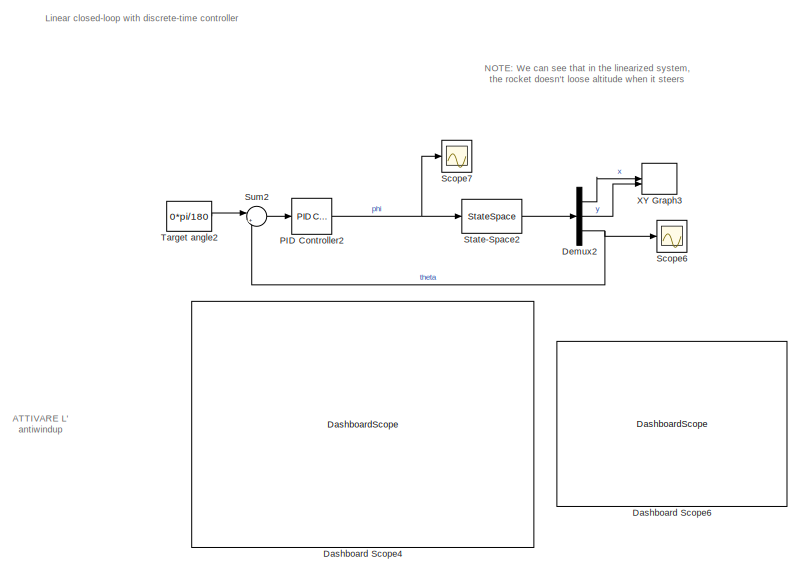
[diagram: root canvas - part 1/7, top center region]
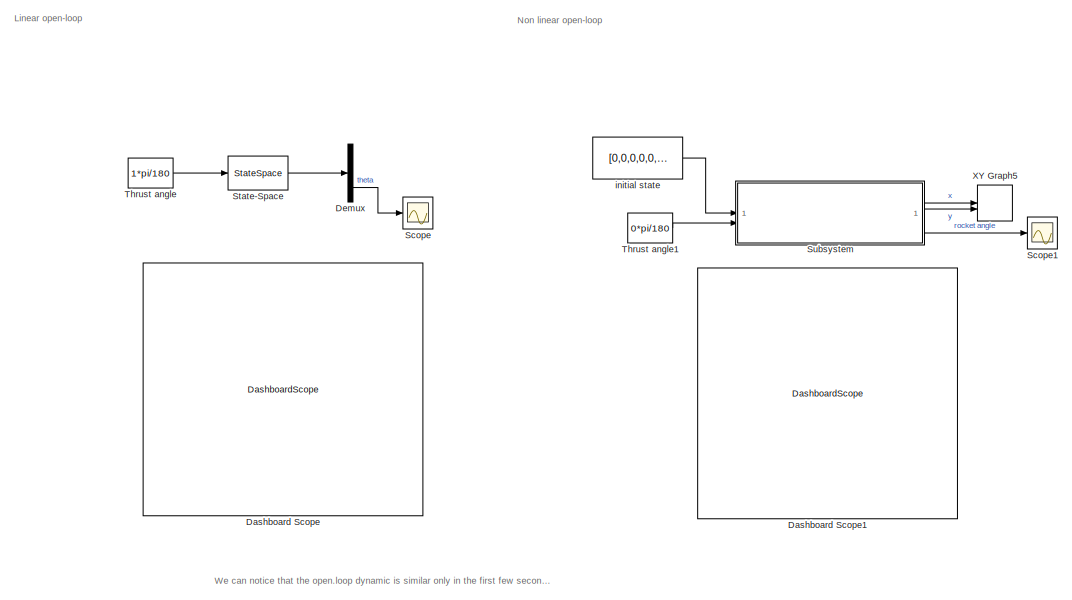
[diagram: root canvas - part 2/7, top left region]
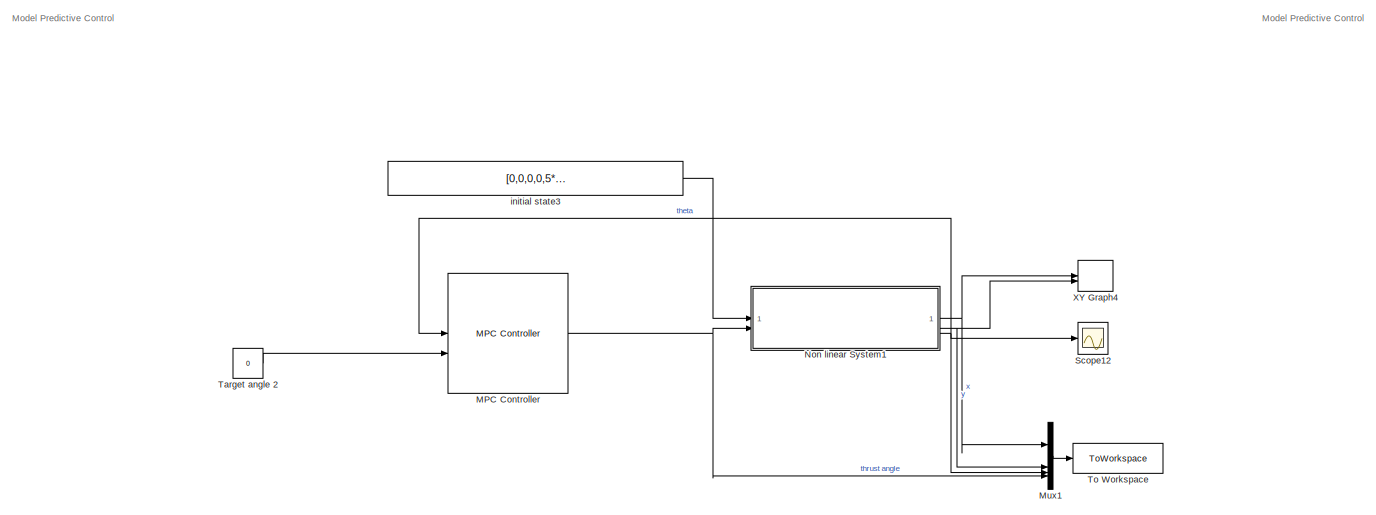
[diagram: root canvas - part 3/7, top right region]
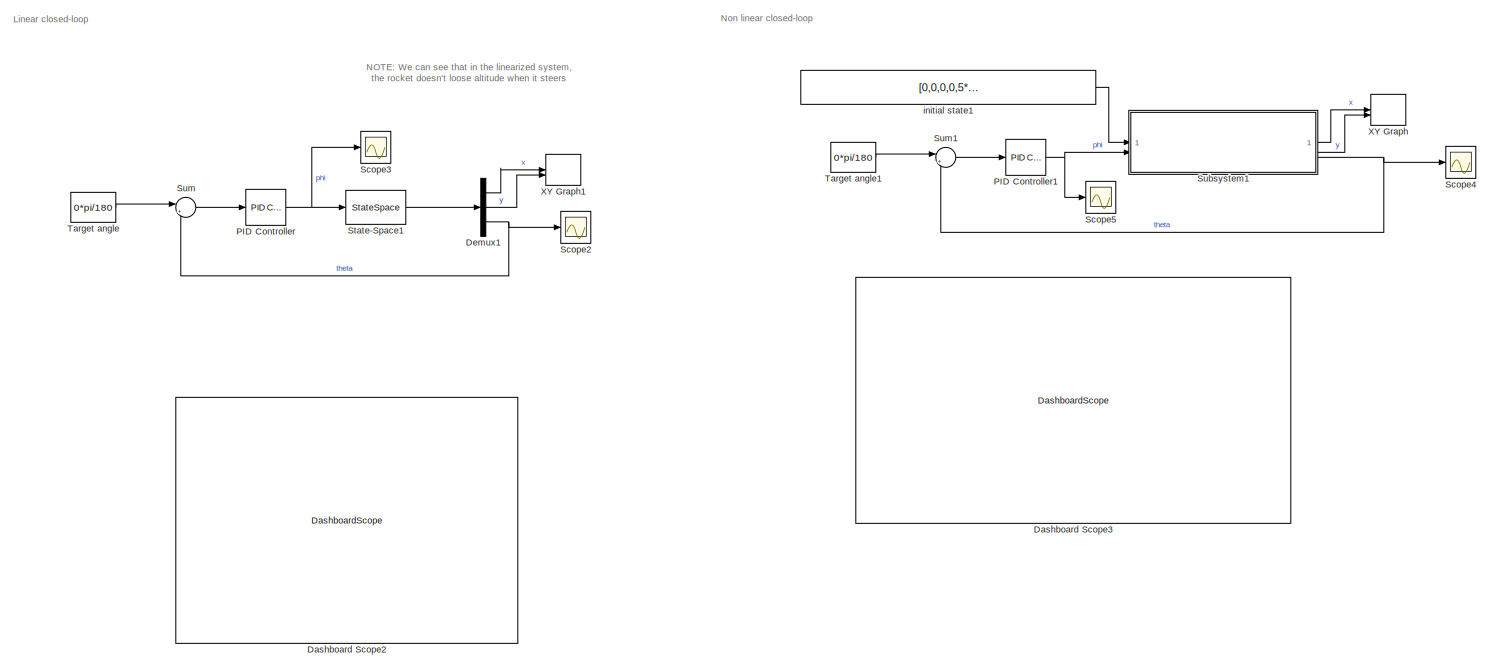
[diagram: root canvas - part 4/7, top left region]
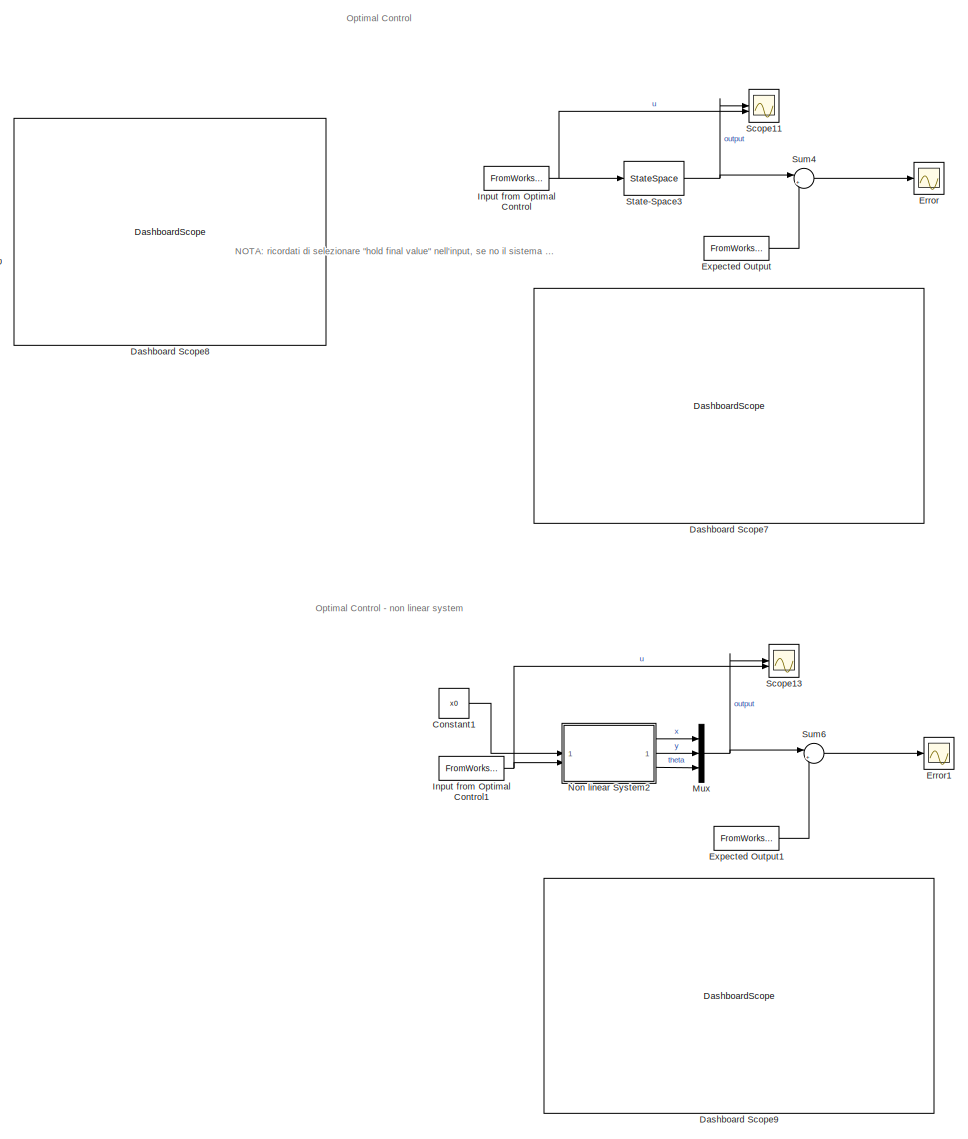
[diagram: root canvas - part 5/7, center side, full height]
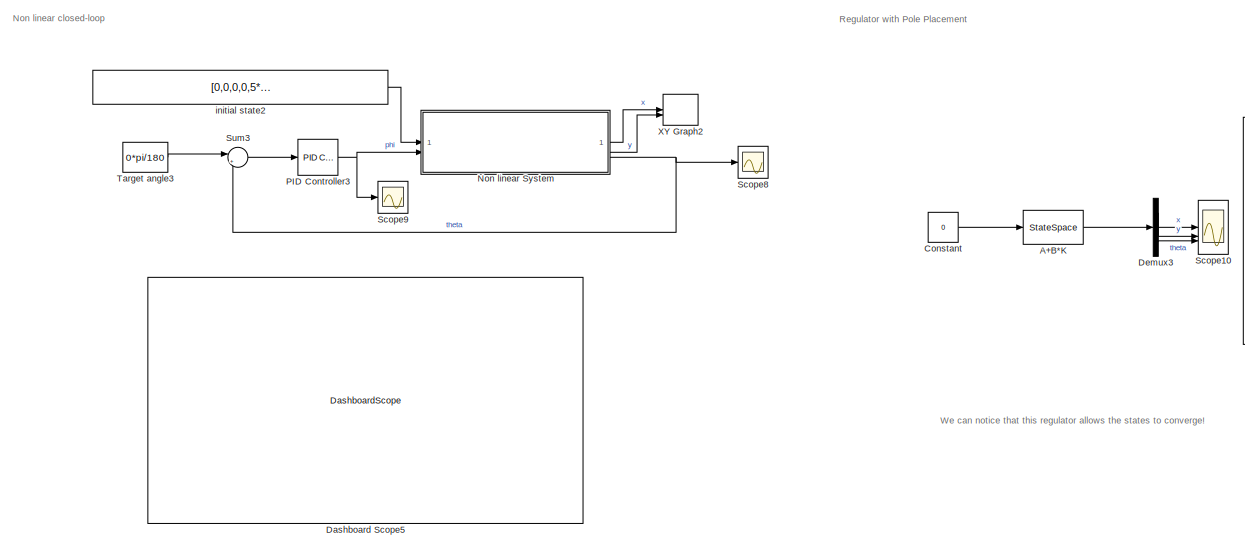
[diagram: root canvas - part 6/7, top center region]
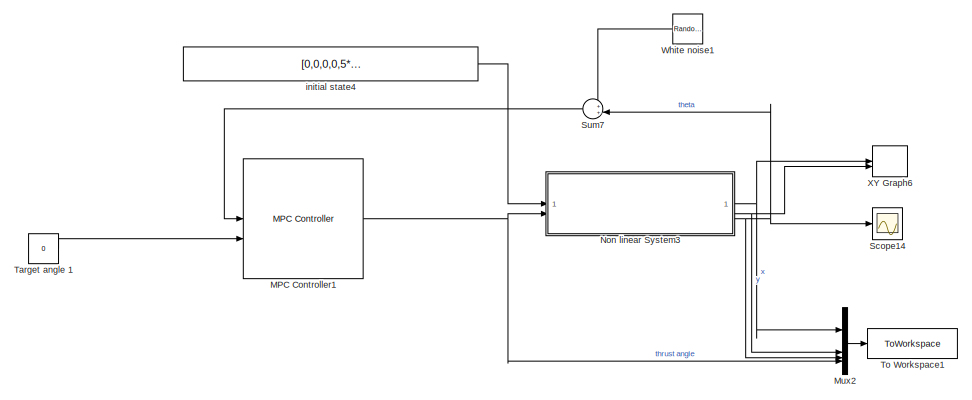
[diagram: root canvas - part 7/7, top right region]
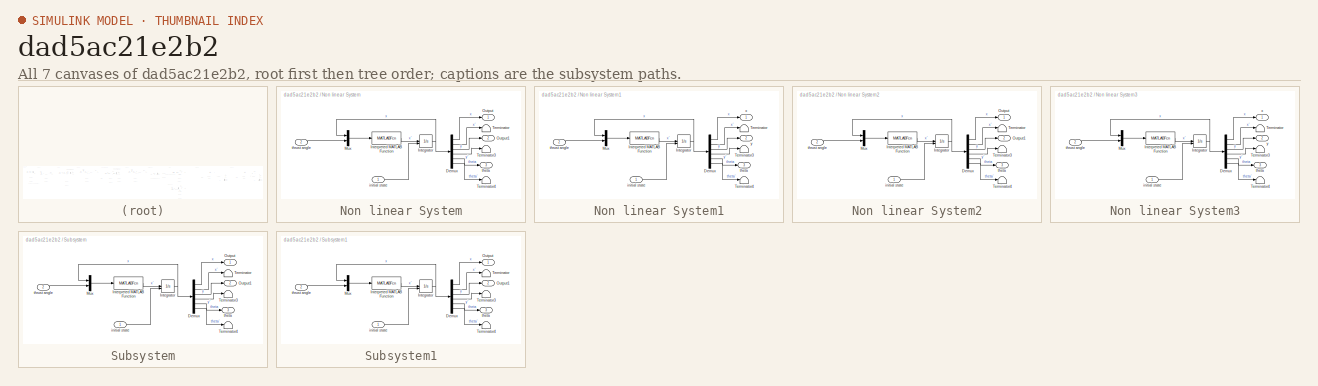
[diagram: thumbnail index - all 7 canvases of the model, root first then tree order]
MODEL slx_dad5ac21e2b2
KIND model
CONFIG AbsTol = auto
CONFIG EnableMultiTasking = off
CONFIG FixedStep = auto
CONFIG MaxStep = auto
CONFIG MinStep = auto
CONFIG RelTol = 1e-3
CONFIG SampleTimeConstraint = Unconstrained
CONFIG SolverName = VariableStepAuto
CONFIG StartTime = 0.0
CONFIG StopTime = 10
BLOCK [StateSpace] A+B*K
  A = reg.a
  B = reg.b
  C = reg.c
  D = reg.d
  InitialCondition = [1,1,0,0,5*pi/180,0]
BLOCK [Constant] Constant
  Value = 0
BLOCK [Constant] Constant1
  Value = x0
BLOCK [DashboardScope] Dashboard Scope
BLOCK [DashboardScope] Dashboard Scope1
BLOCK [DashboardScope] Dashboard Scope2
BLOCK [DashboardScope] Dashboard Scope3
BLOCK [DashboardScope] Dashboard Scope4
BLOCK [DashboardScope] Dashboard Scope5
BLOCK [DashboardScope] Dashboard Scope6
BLOCK [DashboardScope] Dashboard Scope7
BLOCK [DashboardScope] Dashboard Scope8
BLOCK [DashboardScope] Dashboard Scope9
BLOCK [Demux] Demux
  Outputs = 3
BLOCK [Demux] Demux1
  Outputs = 3
BLOCK [Demux] Demux2
  Outputs = 3
BLOCK [Demux] Demux3
  Outputs = 3
BLOCK [Scope] Error
  Floating = off
  NumInputPorts = 1
  ScopeSpecificationString = Simulink.scopes.TimeScopeBlockCfg('CurrentConfiguration', extmgr.ConfigurationSet(extmgr.Configuration('Core','General UI',true),extmgr.Configuration('Core','Source UI',true),extmgr.Configuration('Sources','WiredSimulink',true,'DataLoggingVariableName','ScopeData2'),extmgr.Configuration('Visuals','Time Domain',true,'SerializedDisplays',{struct('MinYLimReal','-3.17439','MaxYLimReal','28.07285','YLa...<+1476ch>
BLOCK [Scope] Error1
  Floating = off
  NumInputPorts = 1
  ScopeSpecificationString = Simulink.scopes.TimeScopeBlockCfg('CurrentConfiguration', extmgr.ConfigurationSet(extmgr.Configuration('Core','General UI',true),extmgr.Configuration('Core','Source UI',true),extmgr.Configuration('Sources','WiredSimulink',true,'DataLoggingVariableName','ScopeData1'),extmgr.Configuration('Visuals','Time Domain',true,'SerializedDisplays',{struct('MinYLimReal','-3.17439','MaxYLimReal','28.07285','YLa...<+1476ch>
BLOCK [FromWorkspace] Expected Output
  VariableName = ySim
BLOCK [FromWorkspace] Expected Output1
  VariableName = ySim
BLOCK [FromWorkspace] Input from Optimal Control
  OutputAfterFinalValue = Holding final value
  SampleTime = Ts
  VariableName = uSim
BLOCK [FromWorkspace] Input from Optimal Control1
  OutputAfterFinalValue = Holding final value
  SampleTime = Ts
  VariableName = uSim
BLOCK [Reference] MPC Controller  REF=mpclib/MPC Controller  (lib defined in mdl_ae329e0e0455)
  SCDEnableBlockLinearizationSpecification = on
  SourceBlock = mpclib/MPC Controller
  SourceType = MPC
BLOCK [Reference] MPC Controller1  REF=mpclib/MPC Controller  (lib defined in mdl_ae329e0e0455)
  SCDEnableBlockLinearizationSpecification = on
  SourceBlock = mpclib/MPC Controller
  SourceType = MPC
BLOCK [Mux] Mux
  DisplayOption = bar
  Inputs = 3
BLOCK [Mux] Mux1
  DisplayOption = bar
BLOCK [Mux] Mux2
  DisplayOption = bar
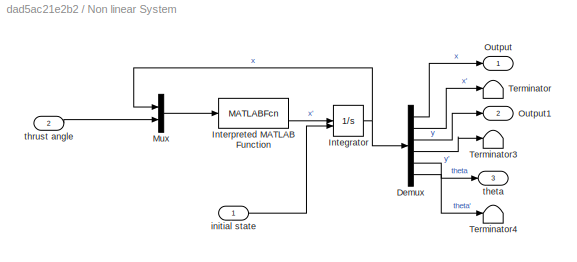
BLOCK [SubSystem] Non linear System
BLOCK [Demux] Non linear System/Demux
  Outputs = 6
BLOCK [Integrator] Non linear System/Integrator
  InitialConditionSource = external
BLOCK [MATLABFcn] Non linear System/Interpreted MATLAB Function
  MATLABFcn = non_linear_dynamic2_no_thrust
BLOCK [Mux] Non linear System/Mux
  DisplayOption = bar
  Inputs = 2
BLOCK [Outport] Non linear System/Output
BLOCK [Outport] Non linear System/Output1
  Port = 2
BLOCK [Terminator] Non linear System/Terminator
BLOCK [Terminator] Non linear System/Terminator3
BLOCK [Terminator] Non linear System/Terminator4
BLOCK [Inport] Non linear System/initial state
BLOCK [Outport] Non linear System/theta
  Port = 3
BLOCK [Inport] Non linear System/thrust angle
  Port = 2
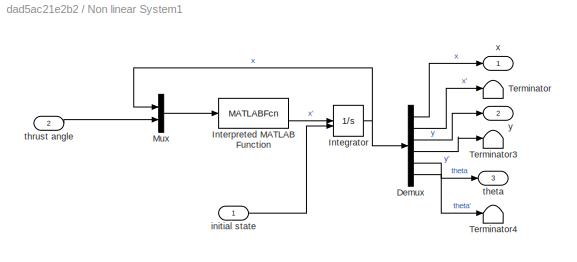
BLOCK [SubSystem] Non linear System1
BLOCK [Demux] Non linear System1/Demux
  Outputs = 6
BLOCK [Integrator] Non linear System1/Integrator
  InitialConditionSource = external
BLOCK [MATLABFcn] Non linear System1/Interpreted MATLAB Function
  MATLABFcn = non_linear_dynamic2_no_thrust
BLOCK [Mux] Non linear System1/Mux
  DisplayOption = bar
  Inputs = 2
BLOCK [Terminator] Non linear System1/Terminator
BLOCK [Terminator] Non linear System1/Terminator3
BLOCK [Terminator] Non linear System1/Terminator4
BLOCK [Inport] Non linear System1/initial state
BLOCK [Outport] Non linear System1/theta
  Port = 3
BLOCK [Inport] Non linear System1/thrust angle
  Port = 2
BLOCK [Outport] Non linear System1/x
BLOCK [Outport] Non linear System1/y
  Port = 2
BLOCK [SubSystem] Non linear System2
BLOCK [Demux] Non linear System2/Demux
  Outputs = 6
BLOCK [Integrator] Non linear System2/Integrator
  InitialConditionSource = external
BLOCK [MATLABFcn] Non linear System2/Interpreted MATLAB Function
  MATLABFcn = non_linear_dynamic2_no_thrust
BLOCK [Mux] Non linear System2/Mux
  DisplayOption = bar
  Inputs = 2
BLOCK [Outport] Non linear System2/Output
BLOCK [Outport] Non linear System2/Output1
  Port = 2
BLOCK [Terminator] Non linear System2/Terminator
BLOCK [Terminator] Non linear System2/Terminator3
BLOCK [Terminator] Non linear System2/Terminator4
BLOCK [Inport] Non linear System2/initial state
BLOCK [Outport] Non linear System2/theta
  Port = 3
BLOCK [Inport] Non linear System2/thrust angle
  Port = 2
BLOCK [SubSystem] Non linear System3
BLOCK [Demux] Non linear System3/Demux
  Outputs = 6
BLOCK [Integrator] Non linear System3/Integrator
  InitialConditionSource = external
BLOCK [MATLABFcn] Non linear System3/Interpreted MATLAB Function
  MATLABFcn = non_linear_dynamic2_no_thrust
BLOCK [Mux] Non linear System3/Mux
  DisplayOption = bar
  Inputs = 2
BLOCK [Terminator] Non linear System3/Terminator
BLOCK [Terminator] Non linear System3/Terminator3
BLOCK [Terminator] Non linear System3/Terminator4
BLOCK [Inport] Non linear System3/initial state
BLOCK [Outport] Non linear System3/theta
  Port = 3
BLOCK [Inport] Non linear System3/thrust angle
  Port = 2
BLOCK [Outport] Non linear System3/x
BLOCK [Outport] Non linear System3/y
  Port = 2
BLOCK [Reference] PID Controller  REF=slpidlib/PID Controller
  LibrarySourceBlock = simulink/Continuous/PID Controller
  SourceBlock = slpidlib/PID Controller
  SourceType = PID 1dof
BLOCK [Reference] PID Controller1  REF=slpidlib/PID Controller
  LibrarySourceBlock = simulink/Continuous/PID Controller
  SourceBlock = slpidlib/PID Controller
  SourceType = PID 1dof
BLOCK [Reference] PID Controller2  REF=slpidlib/PID Controller
  LibrarySourceBlock = simulink/Continuous/PID Controller
  SourceBlock = slpidlib/PID Controller
  SourceType = PID 1dof
BLOCK [Reference] PID Controller3  REF=slpidlib/PID Controller
  LibrarySourceBlock = simulink/Continuous/PID Controller
  SourceBlock = slpidlib/PID Controller
  SourceType = PID 1dof
BLOCK [Scope] Scope
  Floating = off
  NumInputPorts = 1
  ScopeSpecificationString = Simulink.scopes.TimeScopeBlockCfg('CurrentConfiguration', extmgr.ConfigurationSet(extmgr.Configuration('Core','General UI',true),extmgr.Configuration('Core','Source UI',true),extmgr.Configuration('Sources','WiredSimulink',true),extmgr.Configuration('Visuals','Time Domain',true),extmgr.Configuration('Tools','Plot Navigation',true),extmgr.Configuration('Tools','Measurements',true)),'Version','2024b'...<+1ch>
BLOCK [Scope] Scope1
  Floating = off
  NumInputPorts = 1
  ScopeSpecificationString = Simulink.scopes.TimeScopeBlockCfg('CurrentConfiguration', extmgr.ConfigurationSet(extmgr.Configuration('Core','General UI',true),extmgr.Configuration('Core','Source UI',true),extmgr.Configuration('Sources','WiredSimulink',true,'DataLoggingVariableName','ScopeData1'),extmgr.Configuration('Visuals','Time Domain',true,'SerializedDisplays',{struct('MinYLimReal','-46.22619','MaxYLimReal','5.13624','YLa...<+1464ch>
BLOCK [Scope] Scope10
  Floating = off
  NumInputPorts = 3
  ScopeSpecificationString = Simulink.scopes.TimeScopeBlockCfg('CurrentConfiguration', extmgr.ConfigurationSet(extmgr.Configuration('Core','General UI',true),extmgr.Configuration('Core','Source UI',true),extmgr.Configuration('Sources','WiredSimulink',true,'DataLoggingVariableName','ScopeData1'),extmgr.Configuration('Visuals','Time Domain',true,'SerializedDisplays',{struct('MinYLimReal','-0.20093','MaxYLimReal','1.55807','YLab...<+1490ch>
BLOCK [Scope] Scope11
  Floating = off
  NumInputPorts = 2
  ScopeSpecificationString = Simulink.scopes.TimeScopeBlockCfg('CurrentConfiguration', extmgr.ConfigurationSet(extmgr.Configuration('Core','General UI',true),extmgr.Configuration('Core','Source UI',true),extmgr.Configuration('Sources','WiredSimulink',true,'DataLoggingVariableName','ScopeData3'),extmgr.Configuration('Visuals','Time Domain',true,'SerializedDisplays',{struct('MinYLimReal','-4.32749','MaxYLimReal','4.17571','YLab...<+1482ch>
BLOCK [Scope] Scope12
  Floating = off
  NumInputPorts = 1
  ScopeSpecificationString = Simulink.scopes.TimeScopeBlockCfg('CurrentConfiguration', extmgr.ConfigurationSet(extmgr.Configuration('Core','General UI',true),extmgr.Configuration('Core','Source UI',true),extmgr.Configuration('Sources','WiredSimulink',true,'DataLoggingVariableName','ScopeData1'),extmgr.Configuration('Visuals','Time Domain',true,'SerializedDisplays',{struct('MinYLimReal','-0.10945','MaxYLimReal','0.14047','YLab...<+1517ch>
BLOCK [Scope] Scope13
  Floating = off
  NumInputPorts = 2
  ScopeSpecificationString = Simulink.scopes.TimeScopeBlockCfg('CurrentConfiguration', extmgr.ConfigurationSet(extmgr.Configuration('Core','General UI',true),extmgr.Configuration('Core','Source UI',true),extmgr.Configuration('Sources','WiredSimulink',true,'DataLoggingVariableName','ScopeData2'),extmgr.Configuration('Visuals','Time Domain',true,'SerializedDisplays',{struct('MinYLimReal','-4.32749','MaxYLimReal','4.17571','YLab...<+1482ch>
BLOCK [Scope] Scope14
  Floating = off
  NumInputPorts = 1
  ScopeSpecificationString = Simulink.scopes.TimeScopeBlockCfg('CurrentConfiguration', extmgr.ConfigurationSet(extmgr.Configuration('Core','General UI',true),extmgr.Configuration('Core','Source UI',true),extmgr.Configuration('Sources','WiredSimulink',true,'DataLoggingVariableName','ScopeData3'),extmgr.Configuration('Visuals','Time Domain',true,'SerializedDisplays',{struct('MinYLimReal','-0.10945','MaxYLimReal','0.14047','YLab...<+1517ch>
BLOCK [Scope] Scope2
  Floating = off
  NumInputPorts = 1
  ScopeSpecificationString = Simulink.scopes.TimeScopeBlockCfg('CurrentConfiguration', extmgr.ConfigurationSet(extmgr.Configuration('Core','General UI',true),extmgr.Configuration('Core','Source UI',true),extmgr.Configuration('Sources','WiredSimulink',true,'DataLoggingVariableName','ScopeData2'),extmgr.Configuration('Visuals','Time Domain',true,'SerializedDisplays',{struct('MinYLimReal','-0.02413','MaxYLimReal','0.09964','YLab...<+1453ch>
BLOCK [Scope] Scope3
  Floating = off
  NumInputPorts = 1
  ScopeSpecificationString = Simulink.scopes.TimeScopeBlockCfg('CurrentConfiguration', extmgr.ConfigurationSet(extmgr.Configuration('Core','General UI',true),extmgr.Configuration('Core','Source UI',true),extmgr.Configuration('Sources','WiredSimulink',true,'DataLoggingVariableName','ScopeData3'),extmgr.Configuration('Visuals','Time Domain',true,'SerializedDisplays',{struct('MinYLimReal','-0.40355','MaxYLimReal','3.37646','YLab...<+1497ch>
BLOCK [Scope] Scope4
  Floating = off
  NumInputPorts = 1
  ScopeSpecificationString = Simulink.scopes.TimeScopeBlockCfg('CurrentConfiguration', extmgr.ConfigurationSet(extmgr.Configuration('Core','General UI',true),extmgr.Configuration('Core','Source UI',true),extmgr.Configuration('Sources','WiredSimulink',true,'DataLoggingVariableName','ScopeData4'),extmgr.Configuration('Visuals','Time Domain',true,'SerializedDisplays',{struct('MinYLimReal','-0.02463','MaxYLimReal','0.0997','YLabe...<+1449ch>
BLOCK [Scope] Scope5
  Floating = off
  NumInputPorts = 1
  ScopeSpecificationString = Simulink.scopes.TimeScopeBlockCfg('CurrentConfiguration', extmgr.ConfigurationSet(extmgr.Configuration('Core','General UI',true),extmgr.Configuration('Core','Source UI',true),extmgr.Configuration('Sources','WiredSimulink',true,'DataLoggingVariableName','ScopeData5'),extmgr.Configuration('Visuals','Time Domain',true,'SerializedDisplays',{struct('MinYLimReal','-0.40355','MaxYLimReal','3.37646','YLab...<+1497ch>
BLOCK [Scope] Scope6
  Floating = off
  NumInputPorts = 1
  ScopeSpecificationString = Simulink.scopes.TimeScopeBlockCfg('CurrentConfiguration', extmgr.ConfigurationSet(extmgr.Configuration('Core','General UI',true),extmgr.Configuration('Core','Source UI',true),extmgr.Configuration('Sources','WiredSimulink',true,'DataLoggingVariableName','ScopeData6'),extmgr.Configuration('Visuals','Time Domain',true,'SerializedDisplays',{struct('MinYLimReal','-13.78129','MaxYLimReal','1.62822','YLa...<+1457ch>
BLOCK [Scope] Scope7
  Floating = off
  NumInputPorts = 1
  ScopeSpecificationString = Simulink.scopes.TimeScopeBlockCfg('CurrentConfiguration', extmgr.ConfigurationSet(extmgr.Configuration('Core','General UI',true),extmgr.Configuration('Core','Source UI',true),extmgr.Configuration('Sources','WiredSimulink',true,'DataLoggingVariableName','ScopeData7'),extmgr.Configuration('Visuals','Time Domain',true,'SerializedDisplays',{struct('MinYLimReal','-0.6545','MaxYLimReal','0.6545','YLabel...<+1506ch>
BLOCK [Scope] Scope8
  Floating = off
  NumInputPorts = 1
  ScopeSpecificationString = Simulink.scopes.TimeScopeBlockCfg('CurrentConfiguration', extmgr.ConfigurationSet(extmgr.Configuration('Core','General UI',true),extmgr.Configuration('Core','Source UI',true),extmgr.Configuration('Sources','WiredSimulink',true,'DataLoggingVariableName','ScopeData8'),extmgr.Configuration('Visuals','Time Domain',true,'SerializedDisplays',{struct('MinYLimReal','-0.02463','MaxYLimReal','0.0997','YLabe...<+1449ch>
BLOCK [Scope] Scope9
  Floating = off
  NumInputPorts = 1
  ScopeSpecificationString = Simulink.scopes.TimeScopeBlockCfg('CurrentConfiguration', extmgr.ConfigurationSet(extmgr.Configuration('Core','General UI',true),extmgr.Configuration('Core','Source UI',true),extmgr.Configuration('Sources','WiredSimulink',true,'DataLoggingVariableName','ScopeData9'),extmgr.Configuration('Visuals','Time Domain',true,'SerializedDisplays',{struct('MinYLimReal','-0.40355','MaxYLimReal','3.37646','YLab...<+1497ch>
BLOCK [StateSpace] State-Space
  A = A
  B = B
  C = C
  D = D
  InitialCondition = [0, 0, 0, 0, 0, 0]
BLOCK [StateSpace] State-Space1
  A = A
  B = B
  C = C
  D = D
  InitialCondition = [0, 0, 0, 0, 5*pi/180, 0]
BLOCK [StateSpace] State-Space2
  A = A
  B = B
  C = C
  D = D
  InitialCondition = [0, 0, 0, 0, 5*pi/180, 0]
BLOCK [StateSpace] State-Space3
  A = sys.a
  B = sys.b
  C = sys.c
  D = sys.d
  InitialCondition = x0
BLOCK [SubSystem] Subsystem
BLOCK [Demux] Subsystem/Demux
  Outputs = 6
BLOCK [Integrator] Subsystem/Integrator
  InitialConditionSource = external
BLOCK [MATLABFcn] Subsystem/Interpreted MATLAB Function
  MATLABFcn = non_linear_dynamic2_no_thrust
BLOCK [Mux] Subsystem/Mux
  DisplayOption = bar
  Inputs = 2
BLOCK [Outport] Subsystem/Output
BLOCK [Outport] Subsystem/Output1
  Port = 2
BLOCK [Terminator] Subsystem/Terminator
BLOCK [Terminator] Subsystem/Terminator3
BLOCK [Terminator] Subsystem/Terminator4
BLOCK [Inport] Subsystem/initial state
BLOCK [Outport] Subsystem/theta
  Port = 3
BLOCK [Inport] Subsystem/thrust angle
  Port = 2
BLOCK [SubSystem] Subsystem1
BLOCK [Demux] Subsystem1/Demux
  Outputs = 6
BLOCK [Integrator] Subsystem1/Integrator
  InitialConditionSource = external
BLOCK [MATLABFcn] Subsystem1/Interpreted MATLAB Function
  MATLABFcn = non_linear_dynamic2_no_thrust
BLOCK [Mux] Subsystem1/Mux
  DisplayOption = bar
  Inputs = 2
BLOCK [Outport] Subsystem1/Output
BLOCK [Outport] Subsystem1/Output1
  Port = 2
BLOCK [Terminator] Subsystem1/Terminator
BLOCK [Terminator] Subsystem1/Terminator3
BLOCK [Terminator] Subsystem1/Terminator4
BLOCK [Inport] Subsystem1/initial state
BLOCK [Outport] Subsystem1/theta
  Port = 3
BLOCK [Inport] Subsystem1/thrust angle
  Port = 2
BLOCK [Sum] Sum
  Inputs = |+-
BLOCK [Sum] Sum1
  Inputs = |+-
BLOCK [Sum] Sum2
  Inputs = |+-
BLOCK [Sum] Sum3
  Inputs = |+-
BLOCK [Sum] Sum4
  Inputs = |+-
BLOCK [Sum] Sum6
  Inputs = |+-
BLOCK [Sum] Sum7
  Inputs = ++|
  NameLocation = top
BLOCK [Constant] Target angle
  Value = 0*pi/180
BLOCK [Constant] Target angle 1
  Value = 0
BLOCK [Constant] Target angle 2
  Value = 0
BLOCK [Constant] Target angle1
  Value = 0*pi/180
BLOCK [Constant] Target angle2
  Value = 0*pi/180
BLOCK [Constant] Target angle3
  Value = 0*pi/180
BLOCK [Constant] Thrust angle
  Value = 1*pi/180
BLOCK [Constant] Thrust angle1
  Value = 0*pi/180
BLOCK [ToWorkspace] To Workspace
  FixptAsFi = on
  MaxDataPoints = inf
  SampleTime = -1
  SaveFormat = Timeseries
  VariableName = simout1
BLOCK [ToWorkspace] To Workspace1
  FixptAsFi = on
  MaxDataPoints = inf
  SampleTime = -1
  SaveFormat = Timeseries
  VariableName = simout
BLOCK [RandomNumber] White noise1
  NameLocation = top
  SampleTime = 0.2
  Variance = 0.1*pi/180
BLOCK [Record] XY Graph
  CompatibilityTag = XY
  FileSettingsInternal = {"entries":[{"content":{"excelSettings":{"content":{},"type":"Streamout.ExcelSettings"}},"type":"Streamout.FileSettingStorage","uuid":""}],"packageUris":["http:\/\/schema.mathworks.com\/mf0\/streamout_blocks\/R2020a"],"version":"1.0"}  <repeated x7 — deduplicated; at blocks: XY Graph, XY Graph1, XY Graph2, XY Graph3, XY Graph4, XY Graph5, XY Graph6>
  Layout = [1 1]
  SignalsInternal = {"entries":[{"content":{"signals":[{"content":{"blockPath":[],"dimensions":[1],"domain":"","lineColor":"#fe330a","lineWidth":2,"port":1,"sid":[""],"signalID":1,"signalName":"x"},"type":"RecordBlkView.Signal","uuid":""},{"content":{"blockPath":[],"dimensions":[1],"domain":"","lineColor":"#22b573","lineWidth":2,"port":2,"sid":[""],"signalID":2,"signalName":"y"},"type":"RecordBlkView.Signal","uuid":"...<+148ch>
  VisualizationBindings = {"xyplotplugin":{"info":[{"series":[],"subplotID":1}]}}
BLOCK [Record] XY Graph1
  CompatibilityTag = XY
  Layout = [1 1]
  SignalsInternal = {"entries":[{"content":{"signals":[{"content":{"blockPath":[],"dimensions":[1],"domain":"","lineColor":"#a2142f","lineWidth":2,"port":1,"sid":[""],"signalID":1,"signalName":"x"},"type":"RecordBlkView.Signal","uuid":""},{"content":{"blockPath":[],"dimensions":[1],"domain":"","lineColor":"#139fff","lineWidth":2,"port":2,"sid":[""],"signalID":2,"signalName":"y"},"type":"RecordBlkView.Signal","uuid":"...<+148ch>
  VisualizationBindings = {"xyplotplugin":{"info":[{"series":[],"subplotID":1}]}}
BLOCK [Record] XY Graph2
  CompatibilityTag = XY
  Layout = [1 1]
  SignalsInternal = {"entries":[{"content":{"signals":[{"content":{"blockPath":[],"dimensions":[1],"domain":"","lineColor":"#64d413","lineWidth":2,"port":1,"sid":[""],"signalID":1,"signalName":"x"},"type":"RecordBlkView.Signal","uuid":""},{"content":{"blockPath":[],"dimensions":[1],"domain":"","lineColor":"#ff13a6","lineWidth":2,"port":2,"sid":[""],"signalID":2,"signalName":"y"},"type":"RecordBlkView.Signal","uuid":"...<+148ch>
  VisualizationBindings = {"xyplotplugin":{"info":[{"series":[],"subplotID":1}]}}
BLOCK [Record] XY Graph3
  CompatibilityTag = XY
  Layout = [1 1]
  SignalsInternal = {"entries":[{"content":{"signals":[{"content":{"blockPath":[],"dimensions":[1],"domain":"","lineColor":"#ff6929","lineWidth":2,"port":1,"sid":[""],"signalID":1,"signalName":"x"},"type":"RecordBlkView.Signal","uuid":""},{"content":{"blockPath":[],"dimensions":[1],"domain":"","lineColor":"#b746ff","lineWidth":2,"port":2,"sid":[""],"signalID":2,"signalName":"y"},"type":"RecordBlkView.Signal","uuid":"...<+148ch>
  VisualizationBindings = {"xyplotplugin":{"info":[{"series":[],"subplotID":1}]}}
BLOCK [Record] XY Graph4
  CompatibilityTag = XY
  Layout = [1 1]
  SignalsInternal = {"entries":[{"content":{"signals":[{"content":{"blockPath":[],"dimensions":[1],"domain":"","lineColor":"#a2142f","plots":[ 1 ],"port":1,"sid":[""],"signalID":1,"signalName":"x"},"type":"RecordBlkView.Signal","uuid":""},{"content":{"blockPath":[],"dimensions":[1],"domain":"","lineColor":"#139fff","plots":[ 1 ],"port":2,"sid":[""],"signalID":2,"signalName":"y"},"type":"RecordBlkView.Signal","uuid":"...<+148ch>
  VisualizationBindings = {"xyplotplugin":{"info":[{"series":[{"bindingParametersList":[{"parameter":"X-Axis","signalID":1,"signalName":"x"},{"parameter":"Y-Axis","signalID":2,"signalName":"y"}],"seriesID":0}],"subplotID":1}]}}  <repeated x3 — deduplicated; at blocks: XY Graph4, XY Graph5, XY Graph6>
BLOCK [Record] XY Graph5
  CompatibilityTag = XY
  Layout = [1 1]
  SignalsInternal = {"entries":[{"content":{"signals":[{"content":{"blockPath":[],"dimensions":[1],"domain":"","lineColor":"#a2142f","plots":[ 1 ],"port":1,"sid":[""],"signalID":1,"signalName":"x"},"type":"RecordBlkView.Signal","uuid":""},{"content":{"blockPath":[],"dimensions":[1],"domain":"","lineColor":"#139fff","plots":[ 1 ],"port":2,"sid":[""],"signalID":2,"signalName":"y"},"type":"RecordBlkView.Signal","uuid":"...<+148ch>
BLOCK [Record] XY Graph6
  CompatibilityTag = XY
  Layout = [1 1]
  SignalsInternal = {"entries":[{"content":{"signals":[{"content":{"blockPath":[],"dimensions":[1],"domain":"","lineColor":"#a2142f","plots":[ 1 ],"port":1,"signalID":1,"signalName":"x"},"type":"RecordBlkView.Signal","uuid":""},{"content":{"blockPath":[],"dimensions":[1],"domain":"","lineColor":"#139fff","plots":[ 1 ],"port":2,"signalID":2,"signalName":"y"},"type":"RecordBlkView.Signal","uuid":""}]},"type":"RecordBlk...<+126ch>
BLOCK [Constant] initial state
  Value = [0,0,0,0,0,0]
BLOCK [Constant] initial state1
  Value = [0,0,0,0,5*pi/180,0]
BLOCK [Constant] initial state2
  Value = [0,0,0,0,5*pi/180,0]
BLOCK [Constant] initial state3
  Value = [0,0,0,0,5*pi/180,0]
BLOCK [Constant] initial state4
  Value = [0,0,0,0,5*pi/180,0]
ANNOTATION (root): ATTIVARE L' antiwindup
ANNOTATION (root): Linear closed-loop
ANNOTATION (root): Linear closed-loop with discrete-time controller
ANNOTATION (root): Linear open-loop
ANNOTATION (root): Model Predictive Control
ANNOTATION (root): NOTA: ricordati di selezionare "hold final value" nell'input, se no il sistema diverge malissimo!
ANNOTATION (root): NOTE: We can see that in the linearized system, the rocket doesn't loose altitude when it steers
ANNOTATION (root): Non linear closed-loop
ANNOTATION (root): Non linear open-loop
ANNOTATION (root): Optimal Control
ANNOTATION (root): Optimal Control - non linear system
ANNOTATION (root): Regulator with Pole Placement
ANNOTATION (root): We can notice that the open.loop dynamic is similar only in the first few seconds.
ANNOTATION (root): We can notice that this regulator allows the states to converge!
LINE A+B*K:1 -> Demux3:1
LINE Constant1:1 -> Non linear System2:1
LINE Constant:1 -> A+B*K:1
LINE Demux1:1 -> XY Graph1:1
LINE Demux1:2 -> XY Graph1:2
NET Demux1:3 -> Scope2:1, Sum:2
LINE Demux2:1 -> XY Graph3:1
LINE Demux2:2 -> XY Graph3:2
NET Demux2:3 -> Scope6:1, Sum2:2
LINE Demux3:1 -> Scope10:1
LINE Demux3:2 -> Scope10:2
LINE Demux3:3 -> Scope10:3
LINE Demux:3 -> Scope:1
LINE Expected Output1:1 -> Sum6:2
LINE Expected Output:1 -> Sum4:2
NET Input from Optimal Control1:1 -> Non linear System2:2, Scope13:2
NET Input from Optimal Control:1 -> Scope11:2, State-Space3:1
NET MPC Controller1:1 -> Mux2:4, Non linear System3:2
NET MPC Controller:1 -> Mux1:4, Non linear System1:2
LINE Mux1:1 -> To Workspace:1
LINE Mux2:1 -> To Workspace1:1
NET Mux:1 -> Scope13:1, Sum6:1
LINE Non linear System/Demux:1 -> Non linear System/Output:1
LINE Non linear System/Demux:2 -> Non linear System/Terminator:1
LINE Non linear System/Demux:3 -> Non linear System/Output1:1
LINE Non linear System/Demux:4 -> Non linear System/Terminator3:1
LINE Non linear System/Demux:5 -> Non linear System/theta:1
LINE Non linear System/Demux:6 -> Non linear System/Terminator4:1
NET Non linear System/Integrator:1 -> Non linear System/Demux:1, Non linear System/Mux:1
LINE Non linear System/Interpreted MATLAB Function:1 -> Non linear System/Integrator:1
LINE Non linear System/Mux:1 -> Non linear System/Interpreted MATLAB Function:1
LINE Non linear System/initial state:1 -> Non linear System/Integrator:2
LINE Non linear System/thrust angle:1 -> Non linear System/Mux:2
LINE Non linear System1/Demux:1 -> Non linear System1/x:1
LINE Non linear System1/Demux:2 -> Non linear System1/Terminator:1
LINE Non linear System1/Demux:3 -> Non linear System1/y:1
LINE Non linear System1/Demux:4 -> Non linear System1/Terminator3:1
LINE Non linear System1/Demux:5 -> Non linear System1/theta:1
LINE Non linear System1/Demux:6 -> Non linear System1/Terminator4:1
NET Non linear System1/Integrator:1 -> Non linear System1/Demux:1, Non linear System1/Mux:1
LINE Non linear System1/Interpreted MATLAB Function:1 -> Non linear System1/Integrator:1
LINE Non linear System1/Mux:1 -> Non linear System1/Interpreted MATLAB Function:1
LINE Non linear System1/initial state:1 -> Non linear System1/Integrator:2
LINE Non linear System1/thrust angle:1 -> Non linear System1/Mux:2
NET Non linear System1:1 -> Mux1:1, XY Graph4:1
NET Non linear System1:2 -> Mux1:2, XY Graph4:2
NET Non linear System1:3 -> MPC Controller:1, Mux1:3, Scope12:1
LINE Non linear System2/Demux:1 -> Non linear System2/Output:1
LINE Non linear System2/Demux:2 -> Non linear System2/Terminator:1
LINE Non linear System2/Demux:3 -> Non linear System2/Output1:1
LINE Non linear System2/Demux:4 -> Non linear System2/Terminator3:1
LINE Non linear System2/Demux:5 -> Non linear System2/theta:1
LINE Non linear System2/Demux:6 -> Non linear System2/Terminator4:1
NET Non linear System2/Integrator:1 -> Non linear System2/Demux:1, Non linear System2/Mux:1
LINE Non linear System2/Interpreted MATLAB Function:1 -> Non linear System2/Integrator:1
LINE Non linear System2/Mux:1 -> Non linear System2/Interpreted MATLAB Function:1
LINE Non linear System2/initial state:1 -> Non linear System2/Integrator:2
LINE Non linear System2/thrust angle:1 -> Non linear System2/Mux:2
LINE Non linear System2:1 -> Mux:1
LINE Non linear System2:2 -> Mux:2
LINE Non linear System2:3 -> Mux:3
LINE Non linear System3/Demux:1 -> Non linear System3/x:1
LINE Non linear System3/Demux:2 -> Non linear System3/Terminator:1
LINE Non linear System3/Demux:3 -> Non linear System3/y:1
LINE Non linear System3/Demux:4 -> Non linear System3/Terminator3:1
LINE Non linear System3/Demux:5 -> Non linear System3/theta:1
LINE Non linear System3/Demux:6 -> Non linear System3/Terminator4:1
NET Non linear System3/Integrator:1 -> Non linear System3/Demux:1, Non linear System3/Mux:1
LINE Non linear System3/Interpreted MATLAB Function:1 -> Non linear System3/Integrator:1
LINE Non linear System3/Mux:1 -> Non linear System3/Interpreted MATLAB Function:1
LINE Non linear System3/initial state:1 -> Non linear System3/Integrator:2
LINE Non linear System3/thrust angle:1 -> Non linear System3/Mux:2
NET Non linear System3:1 -> Mux2:1, XY Graph6:1
NET Non linear System3:2 -> Mux2:2, XY Graph6:2
NET Non linear System3:3 -> Mux2:3, Scope14:1, Sum7:2
LINE Non linear System:1 -> XY Graph2:1
LINE Non linear System:2 -> XY Graph2:2
NET Non linear System:3 -> Scope8:1, Sum3:2
NET PID Controller1:1 -> Scope5:1, Subsystem1:2
NET PID Controller2:1 -> Scope7:1, State-Space2:1
NET PID Controller3:1 -> Non linear System:2, Scope9:1
NET PID Controller:1 -> Scope3:1, State-Space1:1
LINE State-Space1:1 -> Demux1:1
LINE State-Space2:1 -> Demux2:1
NET State-Space3:1 -> Scope11:1, Sum4:1
LINE State-Space:1 -> Demux:1
LINE Subsystem/Demux:1 -> Subsystem/Output:1
LINE Subsystem/Demux:2 -> Subsystem/Terminator:1
LINE Subsystem/Demux:3 -> Subsystem/Output1:1
LINE Subsystem/Demux:4 -> Subsystem/Terminator3:1
LINE Subsystem/Demux:5 -> Subsystem/theta:1
LINE Subsystem/Demux:6 -> Subsystem/Terminator4:1
NET Subsystem/Integrator:1 -> Subsystem/Demux:1, Subsystem/Mux:1
LINE Subsystem/Interpreted MATLAB Function:1 -> Subsystem/Integrator:1
LINE Subsystem/Mux:1 -> Subsystem/Interpreted MATLAB Function:1
LINE Subsystem/initial state:1 -> Subsystem/Integrator:2
LINE Subsystem/thrust angle:1 -> Subsystem/Mux:2
LINE Subsystem1/Demux:1 -> Subsystem1/Output:1
LINE Subsystem1/Demux:2 -> Subsystem1/Terminator:1
LINE Subsystem1/Demux:3 -> Subsystem1/Output1:1
LINE Subsystem1/Demux:4 -> Subsystem1/Terminator3:1
LINE Subsystem1/Demux:5 -> Subsystem1/theta:1
LINE Subsystem1/Demux:6 -> Subsystem1/Terminator4:1
NET Subsystem1/Integrator:1 -> Subsystem1/Demux:1, Subsystem1/Mux:1
LINE Subsystem1/Interpreted MATLAB Function:1 -> Subsystem1/Integrator:1
LINE Subsystem1/Mux:1 -> Subsystem1/Interpreted MATLAB Function:1
LINE Subsystem1/initial state:1 -> Subsystem1/Integrator:2
LINE Subsystem1/thrust angle:1 -> Subsystem1/Mux:2
LINE Subsystem1:1 -> XY Graph:1
LINE Subsystem1:2 -> XY Graph:2
NET Subsystem1:3 -> Scope4:1, Sum1:2
LINE Subsystem:1 -> XY Graph5:1
LINE Subsystem:2 -> XY Graph5:2
LINE Subsystem:3 -> Scope1:1
LINE Sum1:1 -> PID Controller1:1
LINE Sum2:1 -> PID Controller2:1
LINE Sum3:1 -> PID Controller3:1
LINE Sum4:1 -> Error:1
LINE Sum6:1 -> Error1:1
LINE Sum7:1 -> MPC Controller1:1
LINE Sum:1 -> PID Controller:1
LINE Target angle 1:1 -> MPC Controller1:2
LINE Target angle 2:1 -> MPC Controller:2
LINE Target angle1:1 -> Sum1:1
LINE Target angle2:1 -> Sum2:1
LINE Target angle3:1 -> Sum3:1
LINE Target angle:1 -> Sum:1
LINE Thrust angle1:1 -> Subsystem:2
LINE Thrust angle:1 -> State-Space:1
LINE White noise1:1 -> Sum7:1
LINE initial state1:1 -> Subsystem1:1
LINE initial state2:1 -> Non linear System:1
LINE initial state3:1 -> Non linear System1:1
LINE initial state4:1 -> Non linear System3:1
LINE initial state:1 -> Subsystem:1
note: NET lines group one-source signal fan-out (src -> all destinations, sorted); 1:1 wires keep LINE
